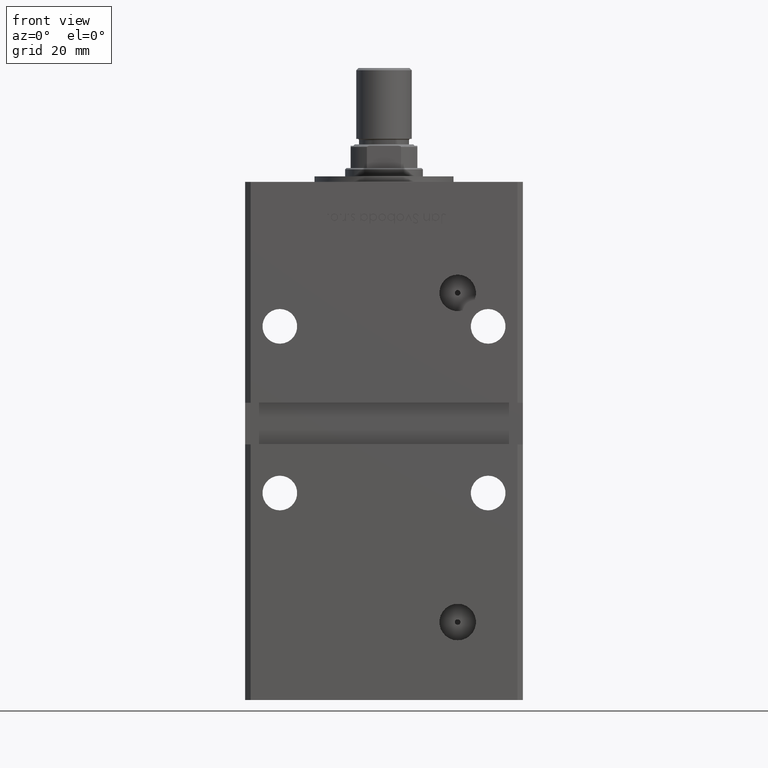
[diagram: clean part render]
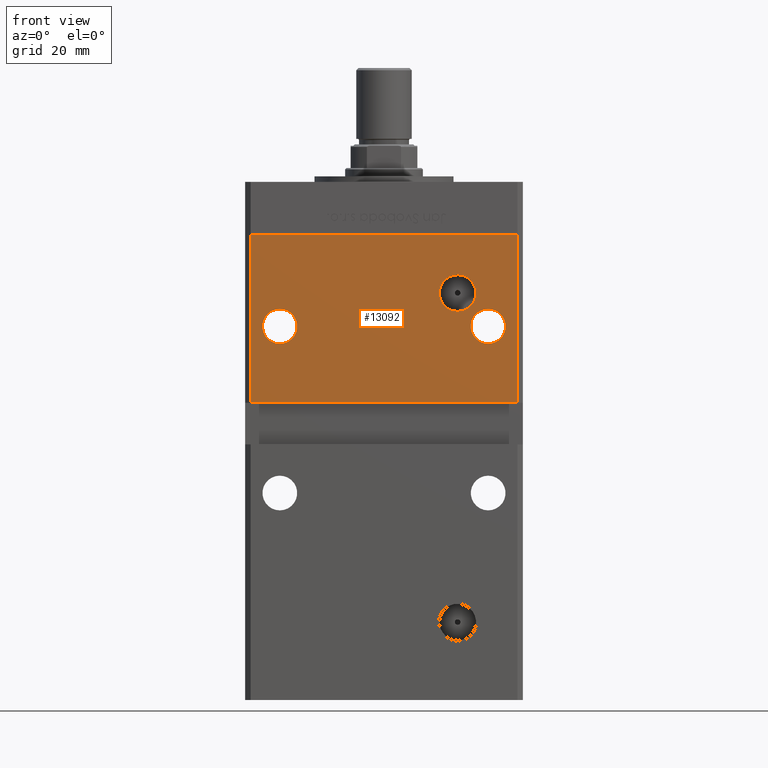
[diagram: same view with one face highlighted and labeled with its STEP entity id]
A machine part, front view. The second image highlights one B-rep face of the part: STEP entity #13092.
In plain terms, the highlighted planar face has unit normal (0, 1, 0).
Its self-contained STEP definition (entity closure, byte-faithful):
#558 = DIRECTION ( 'NONE',  ( 0.000000000000000000, 0.000000000000000000, -1.000000000000000000 ) ) ;
#931 = FACE_BOUND ( 'NONE', #16515, .T. ) ;
#1244 = EDGE_CURVE ( 'NONE', #41100, #17607, #2848, .T. ) ;
#1396 = VECTOR ( 'NONE', #23426, 1000.000000000000000 ) ;
#2848 = LINE ( 'NONE', #19372, #22488 ) ;
#3377 = CARTESIAN_POINT ( 'NONE',  ( 37.50000000000000000, -43.50000000000000000, 115.4999999999999858 ) ) ;
#3789 = ORIENTED_EDGE ( 'NONE', *, *, #53630, .T. ) ;
#4349 = DIRECTION ( 'NONE',  ( -0.000000000000000000, 1.000000000000000000, -0.000000000000000000 ) ) ;
#4475 = CIRCLE ( 'NONE', #22677, 6.250000000000005329 ) ;
#4651 = ORIENTED_EDGE ( 'NONE', *, *, #12168, .T. ) ;
#6870 = CARTESIAN_POINT ( 'NONE',  ( 47.99999999999998579, -43.50000000000000000, 148.5000000000000000 ) ) ;
#9879 = DIRECTION ( 'NONE',  ( 0.000000000000000000, 0.000000000000000000, -1.000000000000000000 ) ) ;
#11000 = VERTEX_POINT ( 'NONE', #22185 ) ;
#11301 = CARTESIAN_POINT ( 'NONE',  ( 37.50000000000000000, -43.50000000000000000, 121.7500000000000000 ) ) ;
#12168 = EDGE_CURVE ( 'NONE', #11000, #27882, #46047, .T. ) ;
#12186 = EDGE_CURVE ( 'NONE', #47682, #13718, #4475, .T. ) ;
#13092 = ADVANCED_FACE ( 'NONE', ( #931, #50266, #29660, #22064 ), #50536, .F. ) ;
#13368 = DIRECTION ( 'NONE',  ( 0.000000000000000000, 1.000000000000000000, 0.000000000000000000 ) ) ;
#13671 = CARTESIAN_POINT ( 'NONE',  ( 26.49999999999997513, -43.50000000000000000, 127.5000000000000000 ) ) ;
#13718 = VERTEX_POINT ( 'NONE', #11301 ) ;
#15116 = ORIENTED_EDGE ( 'NONE', *, *, #1244, .T. ) ;
#15171 = CARTESIAN_POINT ( 'NONE',  ( 37.50000000000000000, -43.50000000000000000, 115.4999999999999858 ) ) ;
#15204 = CIRCLE ( 'NONE', #45526, 6.250000000000005329 ) ;
#15305 = DIRECTION ( 'NONE',  ( -0.000000000000000000, -0.000000000000000000, -1.000000000000000000 ) ) ;
#15459 = CARTESIAN_POINT ( 'NONE',  ( -47.99999999999998579, -43.50000000000000000, 88.00000000000000000 ) ) ;
#15546 = LINE ( 'NONE', #6870, #1396 ) ;
#16085 = CARTESIAN_POINT ( 'NONE',  ( 26.49999999999997513, -43.50000000000000000, 120.9200000000000159 ) ) ;
#16515 = EDGE_LOOP ( 'NONE', ( #38799, #37418 ) ) ;
#17606 = CARTESIAN_POINT ( 'NONE',  ( -47.99999999999998579, -43.50000000000000000, 148.5000000000000000 ) ) ;
#17607 = VERTEX_POINT ( 'NONE', #15459 ) ;
#18096 = CIRCLE ( 'NONE', #32839, 6.250000000000005329 ) ;
#18471 = ORIENTED_EDGE ( 'NONE', *, *, #36621, .F. ) ;
#19372 = CARTESIAN_POINT ( 'NONE',  ( -47.99999999999998579, -43.50000000000000000, 148.5000000000000000 ) ) ;
#19640 = DIRECTION ( 'NONE',  ( 0.000000000000000000, 0.000000000000000000, 1.000000000000000000 ) ) ;
#19913 = DIRECTION ( 'NONE',  ( 0.000000000000000000, 0.000000000000000000, 1.000000000000000000 ) ) ;
#20833 = EDGE_CURVE ( 'NONE', #13718, #47682, #15204, .T. ) ;
#21840 = CARTESIAN_POINT ( 'NONE',  ( 47.99999999999998579, -43.50000000000000000, 148.5000000000000000 ) ) ;
#21883 = CARTESIAN_POINT ( 'NONE',  ( -49.99999999999998579, -43.50000000000000000, 88.00000000000000000 ) ) ;
#22064 = FACE_BOUND ( 'NONE', #44435, .T. ) ;
#22185 = CARTESIAN_POINT ( 'NONE',  ( -37.50000000000000000, -43.50000000000000000, 109.2499999999999858 ) ) ;
#22488 = VECTOR ( 'NONE', #15305, 1000.000000000000000 ) ;
#22607 = EDGE_CURVE ( 'NONE', #28074, #44675, #33114, .T. ) ;
#22677 = AXIS2_PLACEMENT_3D ( 'NONE', #3377, #32647, #19913 ) ;
#23426 = DIRECTION ( 'NONE',  ( -0.000000000000000000, -0.000000000000000000, -1.000000000000000000 ) ) ;
#23565 = AXIS2_PLACEMENT_3D ( 'NONE', #47000, #13368, #29935 ) ;
#24134 = CIRCLE ( 'NONE', #45053, 6.579999999999988525 ) ;
#24964 = CARTESIAN_POINT ( 'NONE',  ( -37.50000000000000000, -43.50000000000000000, 115.4999999999999858 ) ) ;
#25240 = DIRECTION ( 'NONE',  ( 0.000000000000000000, 1.000000000000000000, 0.000000000000000000 ) ) ;
#25247 = VECTOR ( 'NONE', #43296, 1000.000000000000000 ) ;
#27882 = VERTEX_POINT ( 'NONE', #46847 ) ;
#27955 = CARTESIAN_POINT ( 'NONE',  ( -47.99999999999998579, -43.50000000000000000, 148.5000000000000000 ) ) ;
#28074 = VERTEX_POINT ( 'NONE', #34905 ) ;
#29660 = FACE_OUTER_BOUND ( 'NONE', #43616, .T. ) ;
#29906 = ORIENTED_EDGE ( 'NONE', *, *, #52412, .F. ) ;
#29935 = DIRECTION ( 'NONE',  ( 0.000000000000000000, -0.000000000000000000, 1.000000000000000000 ) ) ;
#29991 = VERTEX_POINT ( 'NONE', #39299 ) ;
#30238 = DIRECTION ( 'NONE',  ( -0.000000000000000000, 1.000000000000000000, -0.000000000000000000 ) ) ;
#32647 = DIRECTION ( 'NONE',  ( 0.000000000000000000, 1.000000000000000000, 0.000000000000000000 ) ) ;
#32839 = AXIS2_PLACEMENT_3D ( 'NONE', #24964, #25240, #50441 ) ;
#32913 = DIRECTION ( 'NONE',  ( 0.000000000000000000, 1.000000000000000000, 0.000000000000000000 ) ) ;
#33114 = CIRCLE ( 'NONE', #39184, 6.579999999999988525 ) ;
#33548 = CARTESIAN_POINT ( 'NONE',  ( 37.50000000000000000, -43.50000000000000000, 109.2499999999999858 ) ) ;
#33882 = CARTESIAN_POINT ( 'NONE',  ( 26.49999999999997513, -43.50000000000000000, 127.5000000000000000 ) ) ;
#34073 = LINE ( 'NONE', #21883, #25247 ) ;
#34905 = CARTESIAN_POINT ( 'NONE',  ( 26.49999999999997513, -43.50000000000000000, 134.0800000000000125 ) ) ;
#36621 = EDGE_CURVE ( 'NONE', #42113, #29991, #15546, .T. ) ;
#37154 = ORIENTED_EDGE ( 'NONE', *, *, #22607, .T. ) ;
#37418 = ORIENTED_EDGE ( 'NONE', *, *, #12186, .T. ) ;
#38799 = ORIENTED_EDGE ( 'NONE', *, *, #20833, .T. ) ;
#39184 = AXIS2_PLACEMENT_3D ( 'NONE', #33882, #4349, #558 ) ;
#39291 = LINE ( 'NONE', #17606, #50109 ) ;
#39299 = CARTESIAN_POINT ( 'NONE',  ( 47.99999999999998579, -43.50000000000000000, 88.00000000000000000 ) ) ;
#40402 = DIRECTION ( 'NONE',  ( 0.000000000000000000, 0.000000000000000000, 1.000000000000000000 ) ) ;
#41100 = VERTEX_POINT ( 'NONE', #27955 ) ;
#41599 = CARTESIAN_POINT ( 'NONE',  ( -37.50000000000000000, -43.50000000000000000, 115.4999999999999858 ) ) ;
#42113 = VERTEX_POINT ( 'NONE', #21840 ) ;
#42576 = AXIS2_PLACEMENT_3D ( 'NONE', #41599, #32913, #19640 ) ;
#42834 = DIRECTION ( 'NONE',  ( 1.000000000000000000, 0.000000000000000000, 0.000000000000000000 ) ) ;
#43296 = DIRECTION ( 'NONE',  ( -1.000000000000000000, -0.000000000000000000, -0.000000000000000000 ) ) ;
#43616 = EDGE_LOOP ( 'NONE', ( #15116, #29906, #18471, #44672 ) ) ;
#44204 = DIRECTION ( 'NONE',  ( 0.000000000000000000, 1.000000000000000000, 0.000000000000000000 ) ) ;
#44435 = EDGE_LOOP ( 'NONE', ( #3789, #37154 ) ) ;
#44672 = ORIENTED_EDGE ( 'NONE', *, *, #47465, .F. ) ;
#44675 = VERTEX_POINT ( 'NONE', #16085 ) ;
#44685 = EDGE_LOOP ( 'NONE', ( #51824, #4651 ) ) ;
#45015 = EDGE_CURVE ( 'NONE', #27882, #11000, #18096, .T. ) ;
#45053 = AXIS2_PLACEMENT_3D ( 'NONE', #13671, #30238, #9879 ) ;
#45526 = AXIS2_PLACEMENT_3D ( 'NONE', #15171, #44204, #40402 ) ;
#46047 = CIRCLE ( 'NONE', #42576, 6.250000000000005329 ) ;
#46847 = CARTESIAN_POINT ( 'NONE',  ( -37.50000000000000000, -43.50000000000000000, 121.7500000000000000 ) ) ;
#47000 = CARTESIAN_POINT ( 'NONE',  ( -47.99999999999998579, -43.50000000000000000, 148.5000000000000000 ) ) ;
#47465 = EDGE_CURVE ( 'NONE', #41100, #42113, #39291, .T. ) ;
#47682 = VERTEX_POINT ( 'NONE', #33548 ) ;
#50109 = VECTOR ( 'NONE', #42834, 1000.000000000000000 ) ;
#50266 = FACE_BOUND ( 'NONE', #44685, .T. ) ;
#50441 = DIRECTION ( 'NONE',  ( 0.000000000000000000, 0.000000000000000000, 1.000000000000000000 ) ) ;
#50536 = PLANE ( 'NONE',  #23565 ) ;
#51824 = ORIENTED_EDGE ( 'NONE', *, *, #45015, .T. ) ;
#52412 = EDGE_CURVE ( 'NONE', #29991, #17607, #34073, .T. ) ;
#53630 = EDGE_CURVE ( 'NONE', #44675, #28074, #24134, .T. ) ;